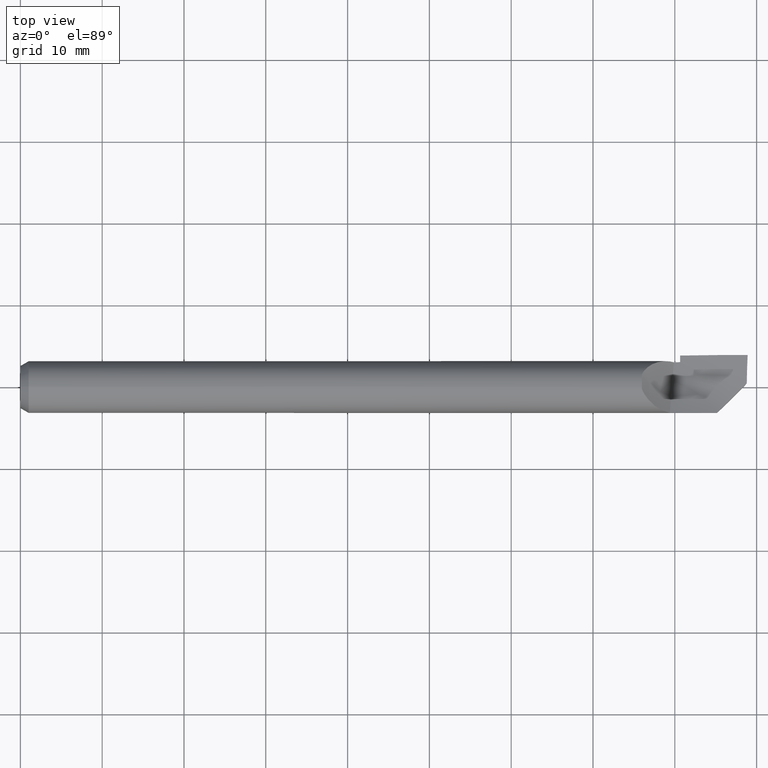
[diagram: clean part render]
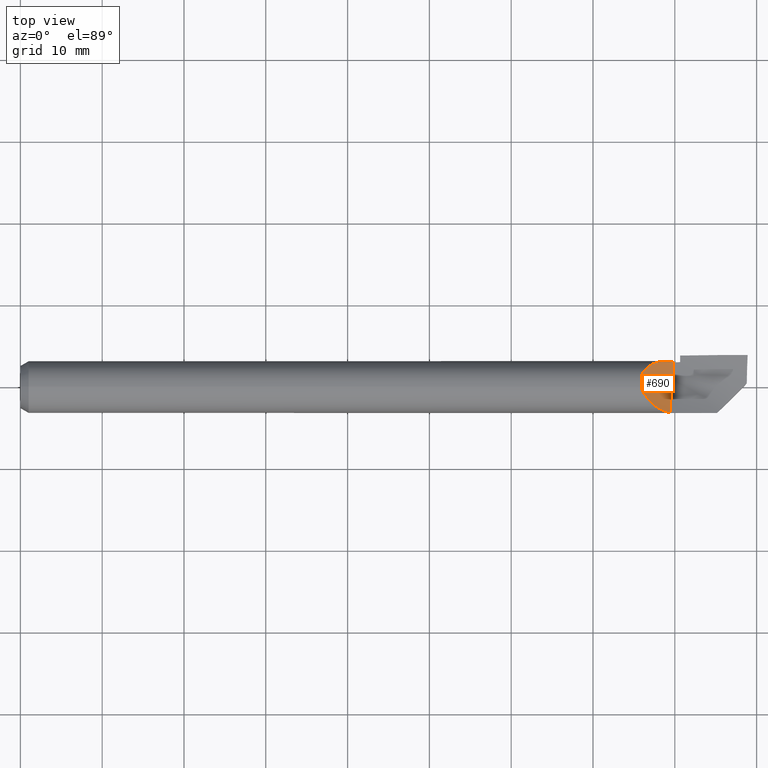
[diagram: same view with one face highlighted and labeled with its STEP entity id]
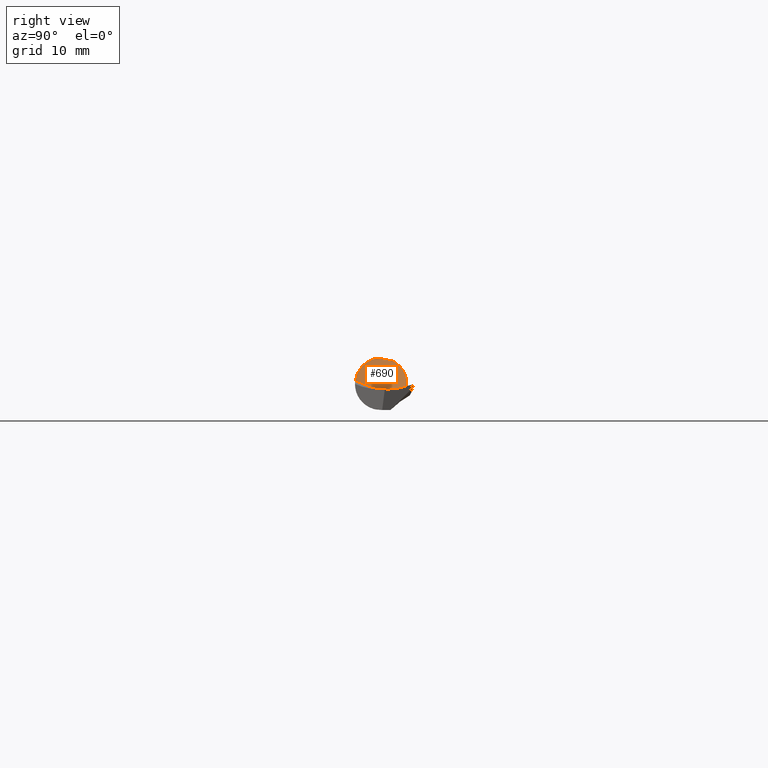
[diagram: same view with one face highlighted and labeled with its STEP entity id]
A machine part, top view. The second image highlights one B-rep face of the part: STEP entity #690.
A second angle (right view) of the same face is appended — the face is thin or edge-on in the first view.
In plain terms, the highlighted face is a freeform B-spline surface patch.
Its self-contained STEP definition (entity closure, byte-faithful):
#8 = VERTEX_POINT ( 'NONE', #120 ) ;
#11 = CARTESIAN_POINT ( 'NONE',  ( 3.094042376239798831, -0.1152339174047414261, 0.04819054716353866896 ) ) ;
#13 = CARTESIAN_POINT ( 'NONE',  ( 3.060351242161530205, 0.1169295297306296999, 0.04390447595362416411 ) ) ;
#15 = CARTESIAN_POINT ( 'NONE',  ( 3.023638633355623107, -0.06361765913626959978, 0.1074965029286738816 ) ) ;
#24 = CARTESIAN_POINT ( 'NONE',  ( 3.021802749776972608, -0.06152602861034239118, 0.1087149189610005506 ) ) ;
#30 = ORIENTED_EDGE ( 'NONE', *, *, #285, .F. ) ;
#36 = CARTESIAN_POINT ( 'NONE',  ( 3.013159567584972276, 0.08955409253617904741, 0.08708879624686161058 ) ) ;
#42 = VERTEX_POINT ( 'NONE', #194 ) ;
#45 = CARTESIAN_POINT ( 'NONE',  ( 3.015572442172250955, 0.09174419123815412414, 0.08479956588348636082 ) ) ;
#71 = CARTESIAN_POINT ( 'NONE',  ( 3.122046472584371291, -0.1234776257476574712, 0.01919930138644435069 ) ) ;
#73 = EDGE_CURVE ( 'NONE', #42, #201, #711, .T. ) ;
#75 = CARTESIAN_POINT ( 'NONE',  ( 3.052279218380861359, -0.09052906584526929090, 0.08604942616162131186 ) ) ;
#77 = CARTESIAN_POINT ( 'NONE',  ( 3.092052141534185505, 0.1240269611545397332, 0.01494308968733345892 ) ) ;
#78 = CARTESIAN_POINT ( 'NONE',  ( 3.138134047346899269, 0.03602737292293302362, -0.03428177899336793538 ) ) ;
#80 = CARTESIAN_POINT ( 'NONE',  ( 3.107989277156481212, -0.1202108462596435112, 0.03406404363466659924 ) ) ;
#83 = EDGE_LOOP ( 'NONE', ( #30, #97, #103, #566 ) ) ;
#85 = CARTESIAN_POINT ( 'NONE',  ( 3.144404332545035263, 0.1199521406065451878, -0.03480652185880706018 ) ) ;
#87 = CARTESIAN_POINT ( 'NONE',  ( 3.097980661279803982, 0.1245561299189576893, 0.009418666560764303933 ) ) ;
#97 = ORIENTED_EDGE ( 'NONE', *, *, #73, .F. ) ;
#103 = ORIENTED_EDGE ( 'NONE', *, *, #157, .F. ) ;
#120 = CARTESIAN_POINT ( 'NONE',  ( 3.125460231133434963, -0.1239539591572526162, 0.01534359831467680020 ) ) ;
#121 = B_SPLINE_CURVE_WITH_KNOTS ( 'NONE', 3,
 ( #154, #705, #599, #146, #550, #36, #45, #256, #486, #495, #384, #709, #436, #654, #234, #591, #580, #631, #189, #242, #128, #13, #412, #181, #641, #702, #134, #646, #367, #140, #634, #77, #586, #87, #291, #475, #471, #465, #232, #362, #479, #246 ),
 .UNSPECIFIED., .F., .F.,
 ( 4, 2, 2, 1, 1, 1, 1, 2, 2, 2, 2, 1, 1, 1, 1, 1, 2, 2, 2, 2, 2, 1, 1, 1, 2, 2, 4 ),
 ( 0.000000000000000000, 0.1249999999994285682, 0.1874999999991447397, 0.2187499999990028809, 0.2343749999989318822, 0.2421874999988963550, 0.2460937499988766208, 0.2480468749988667398, 0.2499999999988568311, 0.3749999999981504795, 0.4374999999977973175, 0.4687499999976207921, 0.4843749999975303089, 0.4921874999974871767, 0.4960937499974656384, 0.4980468749974548692, 0.4990234374974494291, 0.4999999999974440446, 0.6249999999979299892, 0.6874999999981754595, 0.7187499999983002485, 0.7343749999983625321, 0.7421874999983953947, 0.7460937499984133803, 0.7480468749984239274, 0.7499999999984345855, 1.000000000000000000 ),
 .UNSPECIFIED. ) ;
#125 = CARTESIAN_POINT ( 'NONE',  ( 3.057716736039519656, -0.09462296381664606071, 0.08153854661798716486 ) ) ;
#128 = CARTESIAN_POINT ( 'NONE',  ( 3.059456858033632543, 0.1166230789619448899, 0.04471572362713241433 ) ) ;
#132 = CARTESIAN_POINT ( 'NONE',  ( 3.089249625378090780, -0.1131532683183247012, 0.05288326354203787966 ) ) ;
#134 = CARTESIAN_POINT ( 'NONE',  ( 3.063536984851126910, 0.1179943198108090313, 0.04101498454096539487 ) ) ;
#136 = CARTESIAN_POINT ( 'NONE',  ( 3.064392158006249645, -0.09929563577276420694, 0.07583891807140831498 ) ) ;
#139 = CARTESIAN_POINT ( 'NONE',  ( 2.991000401229262806, -0.007837075751874379367, 0.1161530714709115841 ) ) ;
#140 = CARTESIAN_POINT ( 'NONE',  ( 3.082629254565365962, 0.1227126659657724189, 0.02367513149059939301 ) ) ;
#146 = CARTESIAN_POINT ( 'NONE',  ( 3.005712418283758680, 0.08203240738333091031, 0.09427124872229240837 ) ) ;
#154 = CARTESIAN_POINT ( 'NONE',  ( 2.991000401229259253, 0.05945250750572621951, 0.1098426572479087732 ) ) ;
#157 = EDGE_CURVE ( 'NONE', #8, #42, #316, .T. ) ;
#176 = CARTESIAN_POINT ( 'NONE',  ( 3.124638797418811897, -0.1356850508158248814, 0.02141049424412449012 ) ) ;
#179 = CARTESIAN_POINT ( 'NONE',  ( 3.073574048085152999, -0.1051623276853832639, 0.06771642302151673065 ) ) ;
#181 = CARTESIAN_POINT ( 'NONE',  ( 3.060993577853104330, 0.1171461910606215739, 0.04332186279367256088 ) ) ;
#182 = CARTESIAN_POINT ( 'NONE',  ( 3.017939480705743360, -0.05688737499463081271, 0.1111928313433849236 ) ) ;
#186 = CARTESIAN_POINT ( 'NONE',  ( 3.056491468869813932, -0.09372617704281617501, 0.08256578760473144707 ) ) ;
#189 = CARTESIAN_POINT ( 'NONE',  ( 3.054209512856410846, 0.1147115061212685694, 0.04947554016240530983 ) ) ;
#190 = CARTESIAN_POINT ( 'NONE',  ( 3.128730994819307387, -0.08680158210580826705, -0.003279838997927689900 ) ) ;
#192 = CARTESIAN_POINT ( 'NONE',  ( 3.019766801426896130, -0.05911167225763985095, 0.1100312609802526626 ) ) ;
#194 = CARTESIAN_POINT ( 'NONE',  ( 2.991000401229259253, -0.01130295429703349896, 0.1243875123320631881 ) ) ;
#198 = CARTESIAN_POINT ( 'NONE',  ( 3.125460231133434963, -0.1239539591572526162, 0.01534359831467680020 ) ) ;
#201 = VERTEX_POINT ( 'NONE', #355 ) ;
#229 = CARTESIAN_POINT ( 'NONE',  ( 3.045023635571233900, -0.08485814535378853607, 0.09198779291974945593 ) ) ;
#232 = CARTESIAN_POINT ( 'NONE',  ( 3.102797602016997836, 0.1248031549621601705, 0.004919168521958743392 ) ) ;
#233 = CARTESIAN_POINT ( 'NONE',  ( 3.018775306208112852, -0.05791177294551826810, 0.1106638906131709038 ) ) ;
#234 = CARTESIAN_POINT ( 'NONE',  ( 3.032374988633280477, 0.1041527270385999571, 0.06928547170208708417 ) ) ;
#235 = CARTESIAN_POINT ( 'NONE',  ( 3.097074899590689157, -0.1164622586083399053, 0.04518020081075590361 ) ) ;
#239 = CARTESIAN_POINT ( 'NONE',  ( 3.099015534102098179, -0.1171968619236710002, 0.04323073453867415372 ) ) ;
#241 = FACE_OUTER_BOUND ( 'NONE', #83, .T. ) ;
#242 = CARTESIAN_POINT ( 'NONE',  ( 3.057685084005004494, 0.1159995307715388502, 0.04632285640271501664 ) ) ;
#244 = CARTESIAN_POINT ( 'NONE',  ( 3.018077970623159523, -0.05705786498677481444, 0.1111054418968268759 ) ) ;
#246 = CARTESIAN_POINT ( 'NONE',  ( 3.144404332545035263, 0.1199521406065451878, -0.03480652185880706018 ) ) ;
#256 = CARTESIAN_POINT ( 'NONE',  ( 3.018561227604406483, 0.09422468548347183448, 0.08199839772101800983 ) ) ;
#257 = VERTEX_POINT ( 'NONE', #85 ) ;
#285 = EDGE_CURVE ( 'NONE', #201, #257, #121, .T. ) ;
#291 = CARTESIAN_POINT ( 'NONE',  ( 3.100424267437243309, 0.1246990184371287308, 0.007136783712175319427 ) ) ;
#293 = CARTESIAN_POINT ( 'NONE',  ( 3.061575566254704395, -0.09737599806823053761, 0.07826905176566188727 ) ) ;
#310 = CARTESIAN_POINT ( 'NONE',  ( 2.991000401229259253, 0.03535457315286248681, 0.1122384643536407517 ) ) ;
#316 = B_SPLINE_CURVE_WITH_KNOTS ( 'NONE', 3,
 ( #522, #71, #576, #80, #628, #239, #235, #11, #526, #514, #583, #132, #424, #179, #136, #293, #125, #186, #473, #520, #694, #350, #75, #571, #468, #229, #420, #686, #413, #15, #24, #192, #233, #639, #244, #182, #644, #359, #691, #365 ),
 .UNSPECIFIED., .F., .F.,
 ( 4, 2, 2, 2, 1, 2, 2, 2, 2, 2, 1, 1, 1, 2, 2, 2, 2, 1, 1, 1, 1, 2, 2, 4 ),
 ( 0.000000000000000000, 0.1250000000001441902, 0.1875000000002137457, 0.2187500000002484679, 0.2343750000002639278, 0.2421875000002735312, 0.2500000000002831624, 0.3750000000003977929, 0.4375000000004576339, 0.4687500000004846124, 0.4843750000005013212, 0.4921875000005132006, 0.4960937500005156431, 0.4980468750005169198, 0.5000000000005182521, 0.6250000000003632650, 0.6875000000002833289, 0.7187500000002433609, 0.7343750000002232659, 0.7421875000002132738, 0.7460937500002083889, 0.7480468750002058353, 0.7500000000002032818, 1.000000000000000000 ),
 .UNSPECIFIED. ) ;
#350 = CARTESIAN_POINT ( 'NONE',  ( 3.052476782960442669, -0.09068287158714158358, 0.08588751810431244360 ) ) ;
#355 = CARTESIAN_POINT ( 'NONE',  ( 2.991000401229259253, 0.05945250750572621951, 0.1098426572479087732 ) ) ;
#359 = CARTESIAN_POINT ( 'NONE',  ( 3.005395100980244205, -0.04139132469642711060, 0.1190909745749657717 ) ) ;
#362 = CARTESIAN_POINT ( 'NONE',  ( 3.120083152647940228, 0.1254236981689557939, -0.01123640970588376566 ) ) ;
#363 = CARTESIAN_POINT ( 'NONE',  ( 2.991000401229259253, 0.05945250750572621951, 0.1098426572479087732 ) ) ;
#365 = CARTESIAN_POINT ( 'NONE',  ( 2.991000401229259253, -0.01130295429703349896, 0.1243875123320631881 ) ) ;
#367 = CARTESIAN_POINT ( 'NONE',  ( 3.078573267594685969, 0.1219014870699065972, 0.02739903125560276889 ) ) ;
#384 = CARTESIAN_POINT ( 'NONE',  ( 3.021215356388041506, 0.09630816391068187932, 0.07952839634199278251 ) ) ;
#412 = CARTESIAN_POINT ( 'NONE',  ( 3.060800558503873336, 0.1170813981693856892, 0.04349693422794589925 ) ) ;
#413 = CARTESIAN_POINT ( 'NONE',  ( 3.027431447170090717, -0.06782242491986278932, 0.1049328712152750448 ) ) ;
#414 = CARTESIAN_POINT ( 'NONE',  ( 2.991000401229257477, 0.1306927906476124945, 0.1101732615134931592 ) ) ;
#420 = CARTESIAN_POINT ( 'NONE',  ( 3.038675386142198231, -0.07916375410672392421, 0.09686243896392868202 ) ) ;
#424 = CARTESIAN_POINT ( 'NONE',  ( 3.080671461236778264, -0.1092298908593828388, 0.06118426759022413397 ) ) ;
#425 = EDGE_CURVE ( 'NONE', #257, #8, #493, .T. ) ;
#436 = CARTESIAN_POINT ( 'NONE',  ( 3.021588665319364431, 0.09659295394283731739, 0.07918219367280039667 ) ) ;
#465 = CARTESIAN_POINT ( 'NONE',  ( 3.102569425568228567, 0.1247946180181914444, 0.005132419918792499591 ) ) ;
#468 = CARTESIAN_POINT ( 'NONE',  ( 3.052126745790572304, -0.09041022946074273037, 0.08617433320886419557 ) ) ;
#471 = CARTESIAN_POINT ( 'NONE',  ( 3.102208959520945442, 0.1247803083583885475, 0.005469283912415494851 ) ) ;
#473 = CARTESIAN_POINT ( 'NONE',  ( 3.054745082468289574, -0.09241986768436905031, 0.08401786681216352748 ) ) ;
#475 = CARTESIAN_POINT ( 'NONE',  ( 3.101669967368025471, 0.1247578880299937271, 0.005972954349564627181 ) ) ;
#479 = CARTESIAN_POINT ( 'NONE',  ( 3.133906868615869978, 0.1229253339752330726, -0.02456997777136916278 ) ) ;
#486 = CARTESIAN_POINT ( 'NONE',  ( 3.020099061590568734, 0.09544499065678826999, 0.08056532899827593963 ) ) ;
#493 = B_SPLINE_CURVE_WITH_KNOTS ( 'NONE', 3,
 ( #592, #581, #78, #535, #190, #198 ),
 .UNSPECIFIED., .F., .F.,
 ( 4, 2, 4 ),
 ( 0.000000000000000000, 0.5000000000000000000, 1.000000000000000000 ),
 .UNSPECIFIED. ) ;
#495 = CARTESIAN_POINT ( 'NONE',  ( 3.020878838901168706, 0.09604999617736989515, 0.07984069034992777314 ) ) ;
#514 = CARTESIAN_POINT ( 'NONE',  ( 3.090903477753101924, -0.1138917496052922335, 0.05127385820158173596 ) ) ;
#520 = CARTESIAN_POINT ( 'NONE',  ( 3.053894767855783510, -0.09177641538653937003, 0.08472171002664036221 ) ) ;
#522 = CARTESIAN_POINT ( 'NONE',  ( 3.125460231133434963, -0.1239539591572526162, 0.01534359831467680020 ) ) ;
#526 = CARTESIAN_POINT ( 'NONE',  ( 3.092495721668407693, -0.1145881279114605300, 0.04971722205333403699 ) ) ;
#528 = CARTESIAN_POINT ( 'NONE',  ( 3.139358375284376557, 0.04954325908642288195, -0.04372456751534258695 ) ) ;
#534 = CARTESIAN_POINT ( 'NONE',  ( 2.991000401229258365, -0.06854461357006526312, 0.1483782091967474903 ) ) ;
#535 = CARTESIAN_POINT ( 'NONE',  ( 3.131865293313417897, -0.04662908877056987089, -0.01728981778812519951 ) ) ;
#550 = CARTESIAN_POINT ( 'NONE',  ( 3.008532407073654991, 0.08510006257403504581, 0.09151789462568996059 ) ) ;
#566 = ORIENTED_EDGE ( 'NONE', *, *, #425, .F. ) ;
#571 = CARTESIAN_POINT ( 'NONE',  ( 3.052147985298395483, -0.09042676304135652265, 0.08615692677564458501 ) ) ;
#576 = CARTESIAN_POINT ( 'NONE',  ( 3.117201652549389745, -0.1226681185480045233, 0.02442394727944659921 ) ) ;
#579 = CARTESIAN_POINT ( 'NONE',  ( 3.146296324493209173, 0.1460872317433884182, -0.03255520697246595124 ) ) ;
#580 = CARTESIAN_POINT ( 'NONE',  ( 3.045777301224370071, 0.1111343403624529685, 0.05712344650157479692 ) ) ;
#581 = CARTESIAN_POINT ( 'NONE',  ( 3.141268502885683489, 0.07846872971603655045, -0.03725500148982845150 ) ) ;
#583 = CARTESIAN_POINT ( 'NONE',  ( 3.089831850844249050, -0.1134159011241090004, 0.05231799437322515872 ) ) ;
#586 = CARTESIAN_POINT ( 'NONE',  ( 3.095968073780500873, 0.1243941859557160801, 0.01129556355712608290 ) ) ;
#590 = CARTESIAN_POINT ( 'NONE',  ( 3.131641972871150426, -0.05013138235567408257, -0.02462975864161424944 ) ) ;
#591 = CARTESIAN_POINT ( 'NONE',  ( 3.042271347285370631, 0.1094334306134834151, 0.06030255839351563590 ) ) ;
#592 = CARTESIAN_POINT ( 'NONE',  ( 3.144404332545035263, 0.1199521406065451878, -0.03480652185880706018 ) ) ;
#599 = CARTESIAN_POINT ( 'NONE',  ( 2.998046806567022049, 0.07262138876754677119, 0.1019393970971632091 ) ) ;
#624 = CARTESIAN_POINT ( 'NONE',  ( 2.991000401229259253, 0.01176885899254863192, 0.1170854152725301495 ) ) ;
#628 = CARTESIAN_POINT ( 'NONE',  ( 3.104594294468772109, -0.1191807700922595664, 0.03757549007336075803 ) ) ;
#631 = CARTESIAN_POINT ( 'NONE',  ( 3.051346983715321315, 0.1135429671677984642, 0.05207191703534825439 ) ) ;
#634 = CARTESIAN_POINT ( 'NONE',  ( 3.089587177039691213, 0.1237245342876405890, 0.01723295317661905843 ) ) ;
#639 = CARTESIAN_POINT ( 'NONE',  ( 3.018286178337786119, -0.05731374223617943103, 0.1109739133083433443 ) ) ;
#640 = CARTESIAN_POINT ( 'NONE',  ( 2.991000401229255701, 0.06232347250867829869, 0.1026869084277387406 ) ) ;
#641 = CARTESIAN_POINT ( 'NONE',  ( 3.061122358575375291, 0.1171893207682305621, 0.04320505727118314349 ) ) ;
#643 = CARTESIAN_POINT ( 'NONE',  ( 2.991000401229259253, -0.01130295429703349896, 0.1243875123320631881 ) ) ;
#644 = CARTESIAN_POINT ( 'NONE',  ( 3.017898388335010562, -0.05683675989071663298, 0.1112187519483049392 ) ) ;
#646 = CARTESIAN_POINT ( 'NONE',  ( 3.068153190719259182, 0.1195033695645657812, 0.03690030510870125763 ) ) ;
#653 = B_SPLINE_SURFACE_WITH_KNOTS ( 'NONE', 1, 3, ( 
 ( #579, #528, #590, #176 ),
 ( #414, #640, #139, #534 ) ),
 .UNSPECIFIED., .F., .F., .F.,
 ( 2, 2 ),
 ( 4, 4 ),
 ( 0.000000000000000000, 1.000000000000000000 ),
 ( 0.01806016766163686185, 0.02329473624391207448 ),
 .UNSPECIFIED. ) ;
#654 = CARTESIAN_POINT ( 'NONE',  ( 3.026606087085095709, 0.1003989948031664414, 0.07453225638203395120 ) ) ;
#686 = CARTESIAN_POINT ( 'NONE',  ( 3.030121385255953648, -0.07065454130770194852, 0.1030546035079263345 ) ) ;
#690 = ADVANCED_FACE ( 'NONE', ( #241 ), #653, .T. ) ;
#691 = CARTESIAN_POINT ( 'NONE',  ( 2.996461211372685174, -0.02574506713798382918, 0.1230751470445839296 ) ) ;
#694 = CARTESIAN_POINT ( 'NONE',  ( 3.052942771670648092, -0.09104419112720692209, 0.08550511591986799387 ) ) ;
#702 = CARTESIAN_POINT ( 'NONE',  ( 3.061233434048850732, 0.1172263991159961938, 0.04310431124673041320 ) ) ;
#705 = CARTESIAN_POINT ( 'NONE',  ( 2.993995538293130920, 0.06607263003470871532, 0.1062595876656409616 ) ) ;
#709 = CARTESIAN_POINT ( 'NONE',  ( 3.021440218537263966, 0.09648002482795725587, 0.07931981511433702781 ) ) ;
#711 = B_SPLINE_CURVE_WITH_KNOTS ( 'NONE', 3,
 ( #643, #624, #310, #363 ),
 .UNSPECIFIED., .F., .F.,
 ( 4, 4 ),
 ( 0.000000000000000000, 1.000000000000000000 ),
 .UNSPECIFIED. ) ;